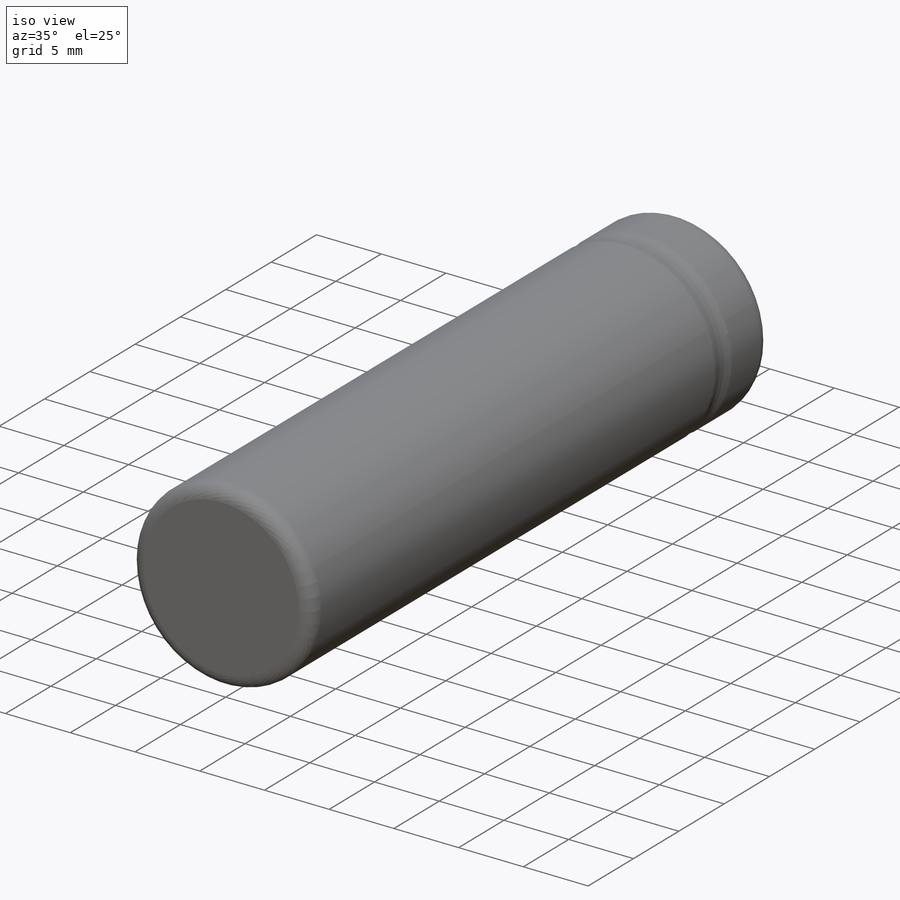
[diagram: iso view]
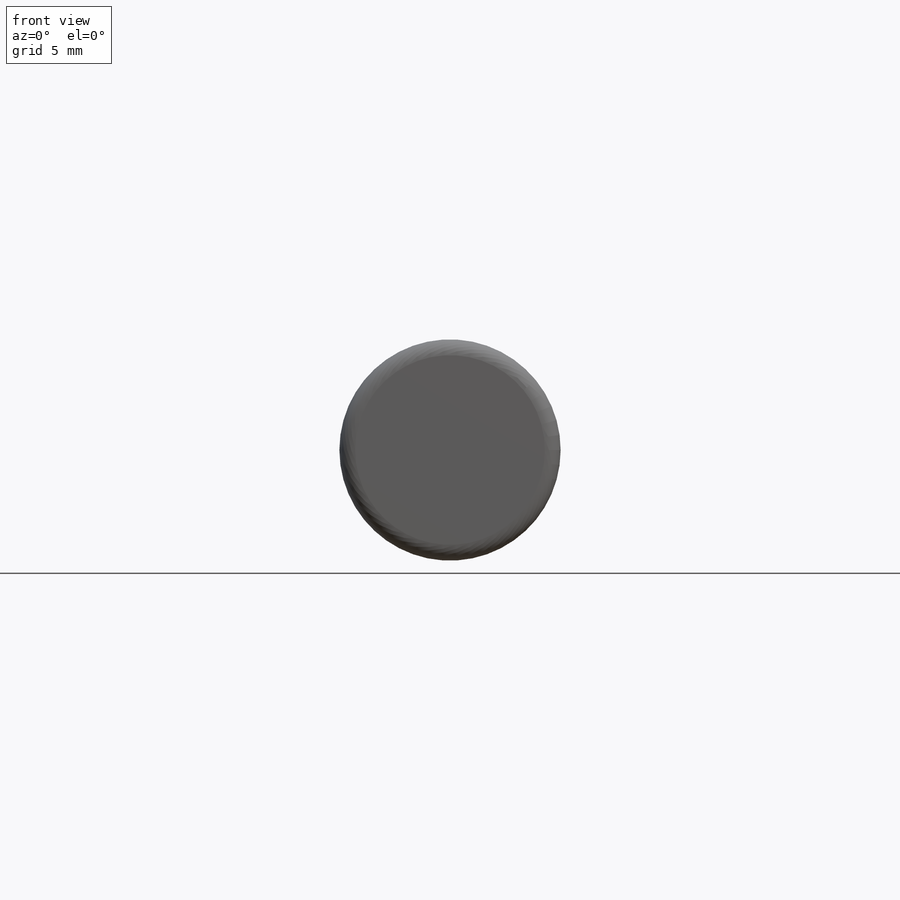
[diagram: front view]
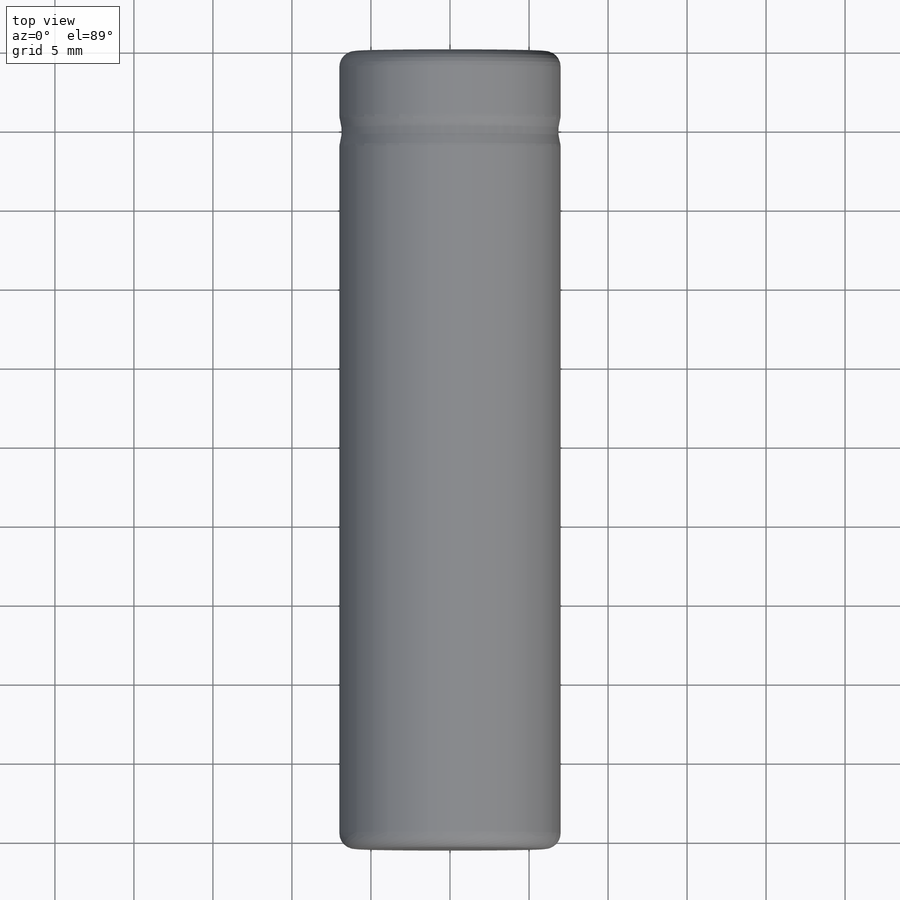
[diagram: top view]
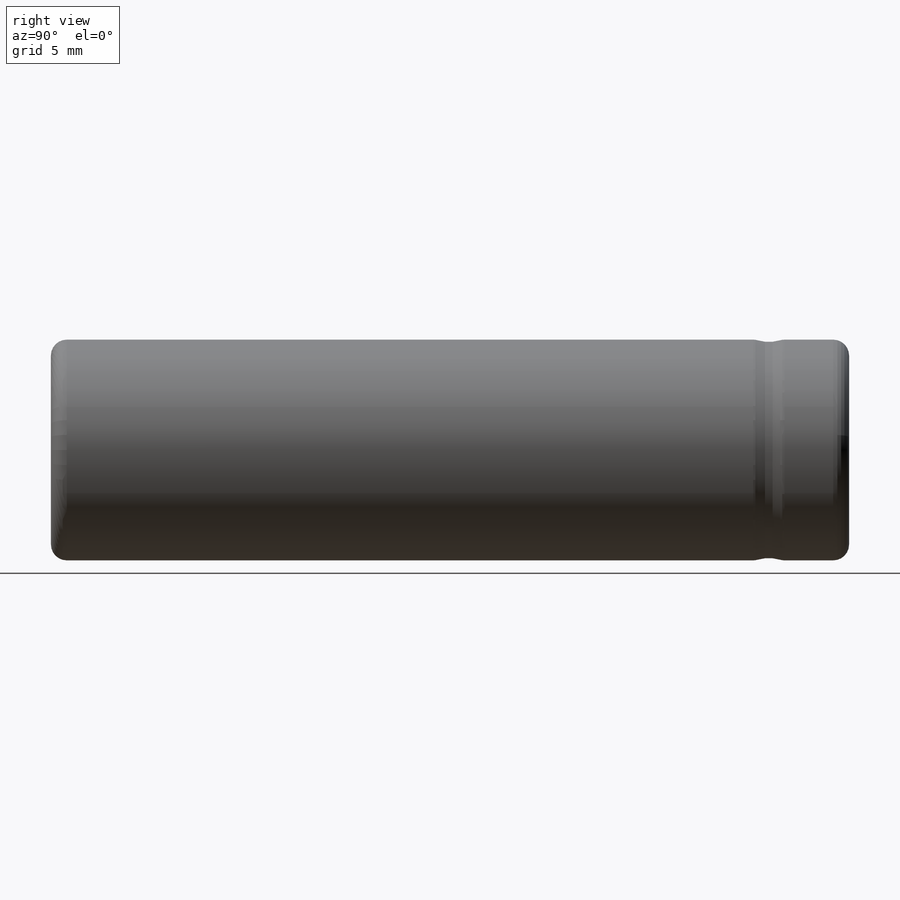
[diagram: right view]
SOLIDWORKS PART (.sldprt)
format: sldprt  version: not decoded by parser v0  size: 306,688 bytes
history: native  units: mm
features: sketch x2, material x1, extrude x1, cut_revolve x1, fillet x1 (+15 scaffold rows collapsed)
feature tree (21):
  scaffold x15  (default folders/planes/origin — collapsed)
  material  "Material <not specified>"
  sketch  "Sketch1"  dims[D1=14.0mm]
  extrude  "Extrude1"  Depth=50.5mm
  sketch  "Sketch2"  dims[D1=5.0mm]
  cut_revolve  "Cut-Revolve1"  Angle=360deg
  fillet  "Fillet1"  Radius=1mm
decode coverage: 5 of 5 modeling features carry decoded parameters
note: suppression state not decoded; provenance and decode notes live in map.json
